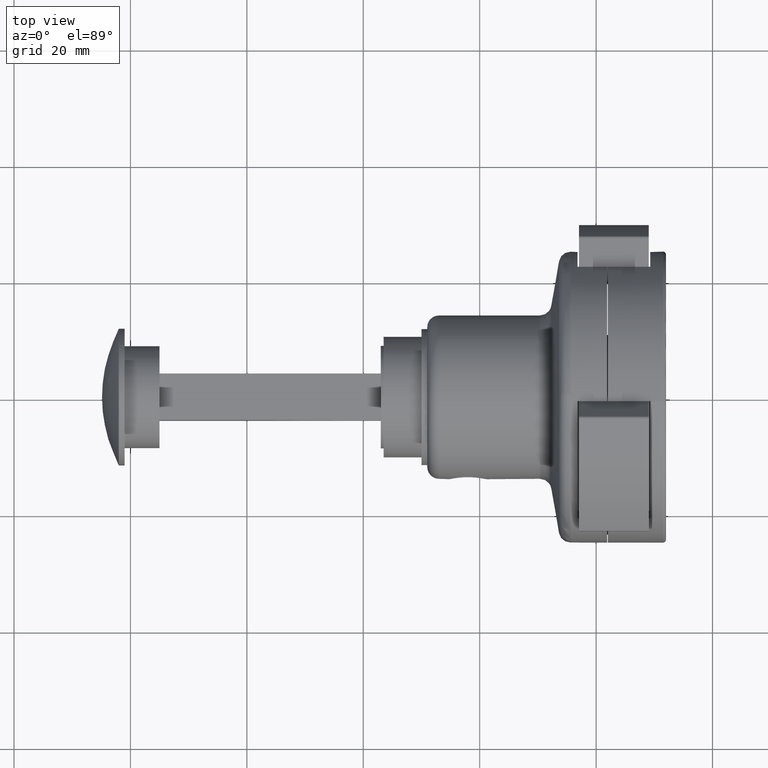
[diagram: clean part render]
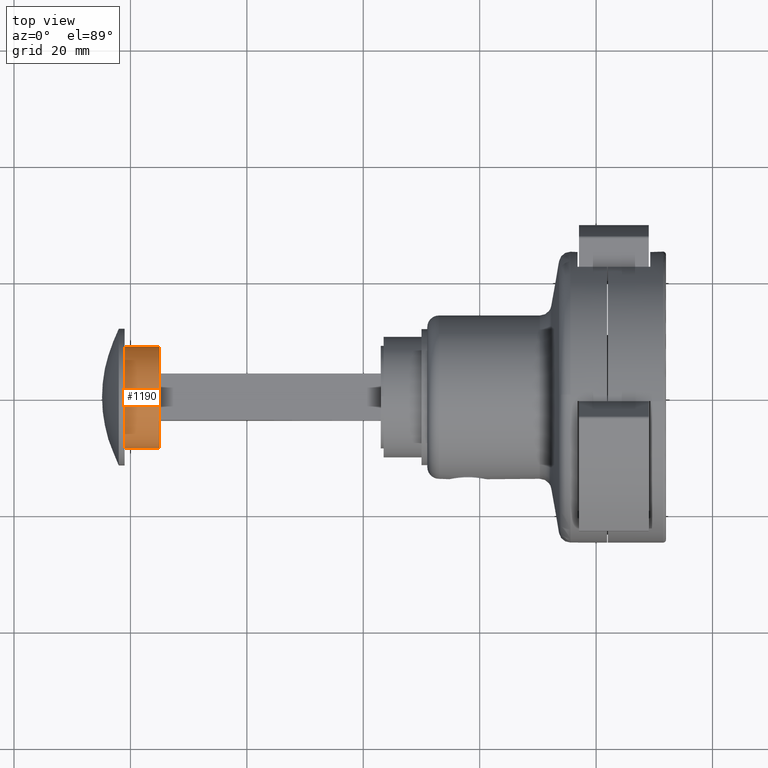
[diagram: same view with one face highlighted and labeled with its STEP entity id]
A machine part, top view. The second image highlights one B-rep face of the part: STEP entity #1190.
In plain terms, the highlighted cylindrical surface (bore or boss wall) has radius 8.75 mm, axis along (1, -0, 0).
Its self-contained STEP definition (entity closure, byte-faithful):
#1129 = CIRCLE ( 'NONE', #13626, 8.750000000000001776 ) ;
#1190 = ADVANCED_FACE ( 'NONE', ( #2200, #5572 ), #10578, .T. ) ;
#2200 = FACE_OUTER_BOUND ( 'NONE', #10063, .T. ) ;
#3019 = VERTEX_POINT ( 'NONE', #12291 ) ;
#3037 = DIRECTION ( 'NONE',  ( 1.000000000000000000, -1.184491695909112875E-16, -0.000000000000000000 ) ) ;
#3642 = ORIENTED_EDGE ( 'NONE', *, *, #13584, .T. ) ;
#4117 = ORIENTED_EDGE ( 'NONE', *, *, #12473, .F. ) ;
#4285 = AXIS2_PLACEMENT_3D ( 'NONE', #10763, #8726, #6377 ) ;
#4993 = DIRECTION ( 'NONE',  ( 1.982541115402065356E-16, 1.000000000000000000, 0.000000000000000000 ) ) ;
#5572 = FACE_OUTER_BOUND ( 'NONE', #10339, .T. ) ;
#6377 = DIRECTION ( 'NONE',  ( 1.982541115402065356E-16, 1.000000000000000000, 0.000000000000000000 ) ) ;
#6449 = DIRECTION ( 'NONE',  ( 0.000000000000000000, 1.000000000000000000, 0.000000000000000000 ) ) ;
#8520 = CARTESIAN_POINT ( 'NONE',  ( -15.00000000000000000, 0.000000000000000000, 0.000000000000000000 ) ) ;
#8726 = DIRECTION ( 'NONE',  ( 1.000000000000000000, -1.184491695909112875E-16, -0.000000000000000000 ) ) ;
#10063 = EDGE_LOOP ( 'NONE', ( #3642 ) ) ;
#10339 = EDGE_LOOP ( 'NONE', ( #4117 ) ) ;
#10429 = CIRCLE ( 'NONE', #4285, 8.750000000000000000 ) ;
#10578 = CYLINDRICAL_SURFACE ( 'NONE', #12072, 8.750000000000000000 ) ;
#10672 = DIRECTION ( 'NONE',  ( 1.000000000000000000, -1.184491695909112875E-16, -0.000000000000000000 ) ) ;
#10763 = CARTESIAN_POINT ( 'NONE',  ( -15.00000000000000178, 1.227643005467940688E-31, 0.000000000000000000 ) ) ;
#10945 = CARTESIAN_POINT ( 'NONE',  ( -20.99999999999999645, 7.106950175454676758E-16, 0.000000000000000000 ) ) ;
#11015 = VERTEX_POINT ( 'NONE', #12440 ) ;
#12072 = AXIS2_PLACEMENT_3D ( 'NONE', #8520, #10672, #4993 ) ;
#12291 = CARTESIAN_POINT ( 'NONE',  ( -15.00000000000000000, 8.750000000000000000, 0.000000000000000000 ) ) ;
#12440 = CARTESIAN_POINT ( 'NONE',  ( -20.99999999999999645, 8.750000000000001776, 0.000000000000000000 ) ) ;
#12473 = EDGE_CURVE ( 'NONE', #3019, #3019, #10429, .T. ) ;
#13584 = EDGE_CURVE ( 'NONE', #11015, #11015, #1129, .T. ) ;
#13626 = AXIS2_PLACEMENT_3D ( 'NONE', #10945, #3037, #6449 ) ;